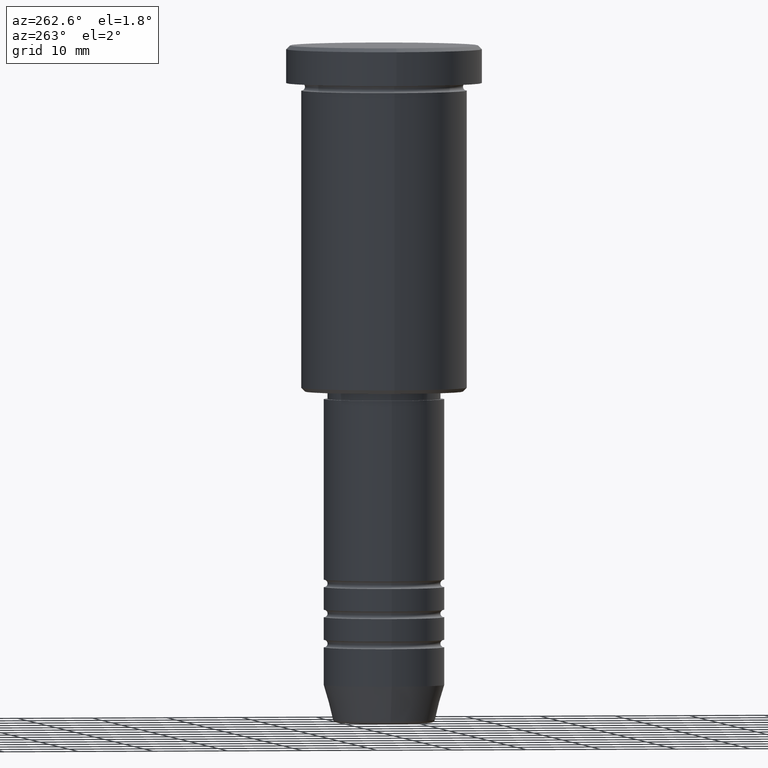
[diagram: clean part render]
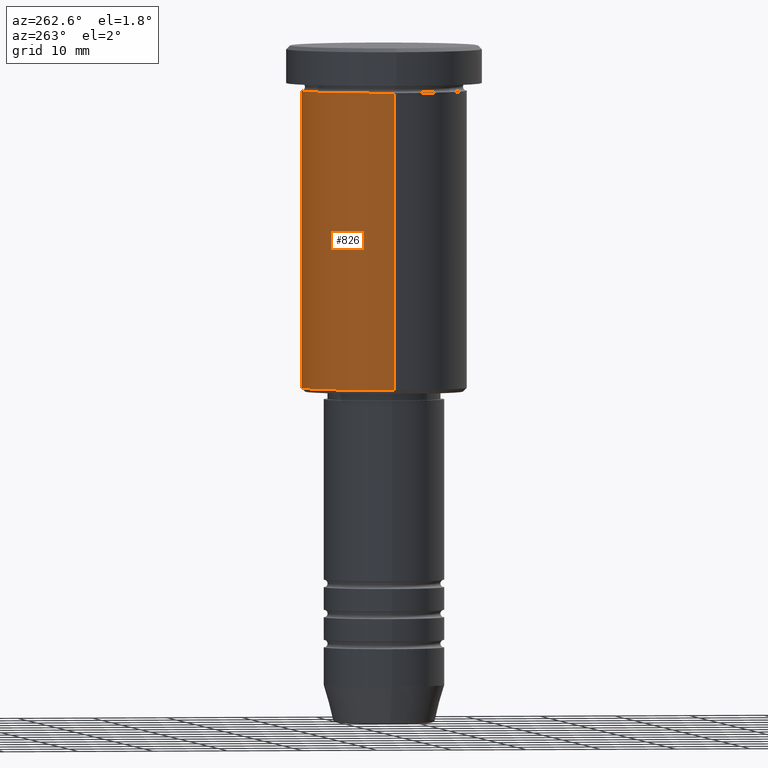
[diagram: same view with one face highlighted and labeled with its STEP entity id]
A machine part, auxiliary view. The second image highlights one B-rep face of the part: STEP entity #826.
In plain terms, the highlighted cylindrical surface (partial cylindrical patch) has radius 11 mm, axis along (-0, -0, 1).
Its self-contained STEP definition (entity closure, byte-faithful):
#27 = EDGE_LOOP ( 'NONE', ( #1053, #132, #223, #1027 ) ) ;
#119 = CARTESIAN_POINT ( 'NONE',  ( 0.000000000000000000, 0.000000000000000000, -45.49999999999998579 ) ) ;
#132 = ORIENTED_EDGE ( 'NONE', *, *, #382, .T. ) ;
#174 = DIRECTION ( 'NONE',  ( -0.000000000000000000, -0.000000000000000000, 1.000000000000000000 ) ) ;
#223 = ORIENTED_EDGE ( 'NONE', *, *, #1121, .F. ) ;
#243 = AXIS2_PLACEMENT_3D ( 'NONE', #1047, #873, #612 ) ;
#271 = CYLINDRICAL_SURFACE ( 'NONE', #605, 11.00000000000000000 ) ;
#272 = CARTESIAN_POINT ( 'NONE',  ( 11.00000000000000000, 0.000000000000000000, -45.49999999999998579 ) ) ;
#274 = CIRCLE ( 'NONE', #967, 11.00000000000000000 ) ;
#317 = CARTESIAN_POINT ( 'NONE',  ( 11.00000000000000000, 0.000000000000000000, -5.999999999999999112 ) ) ;
#343 = CARTESIAN_POINT ( 'NONE',  ( 11.00000000000000000, 0.000000000000000000, 0.000000000000000000 ) ) ;
#354 = VECTOR ( 'NONE', #704, 1000.000000000000000 ) ;
#382 = EDGE_CURVE ( 'NONE', #785, #764, #820, .T. ) ;
#413 = VERTEX_POINT ( 'NONE', #272 ) ;
#436 = CARTESIAN_POINT ( 'NONE',  ( -11.00000000000000000, 1.347111479062088405E-15, -45.49999999999998579 ) ) ;
#444 = DIRECTION ( 'NONE',  ( 1.000000000000000000, 0.000000000000000000, 0.000000000000000000 ) ) ;
#478 = DIRECTION ( 'NONE',  ( -1.000000000000000000, 0.000000000000000000, 0.000000000000000000 ) ) ;
#491 = CIRCLE ( 'NONE', #243, 11.00000000000000000 ) ;
#534 = FACE_OUTER_BOUND ( 'NONE', #27, .T. ) ;
#582 = DIRECTION ( 'NONE',  ( -0.000000000000000000, -0.000000000000000000, 1.000000000000000000 ) ) ;
#605 = AXIS2_PLACEMENT_3D ( 'NONE', #643, #1089, #444 ) ;
#612 = DIRECTION ( 'NONE',  ( 1.000000000000000000, 0.000000000000000000, 0.000000000000000000 ) ) ;
#626 = EDGE_CURVE ( 'NONE', #413, #785, #274, .T. ) ;
#635 = VERTEX_POINT ( 'NONE', #317 ) ;
#643 = CARTESIAN_POINT ( 'NONE',  ( 0.000000000000000000, 0.000000000000000000, 0.000000000000000000 ) ) ;
#704 = DIRECTION ( 'NONE',  ( -0.000000000000000000, -0.000000000000000000, 1.000000000000000000 ) ) ;
#730 = EDGE_CURVE ( 'NONE', #413, #635, #1054, .T. ) ;
#764 = VERTEX_POINT ( 'NONE', #1068 ) ;
#785 = VERTEX_POINT ( 'NONE', #436 ) ;
#820 = LINE ( 'NONE', #997, #1042 ) ;
#826 = ADVANCED_FACE ( 'NONE', ( #534 ), #271, .T. ) ;
#873 = DIRECTION ( 'NONE',  ( -0.000000000000000000, -0.000000000000000000, 1.000000000000000000 ) ) ;
#967 = AXIS2_PLACEMENT_3D ( 'NONE', #119, #582, #478 ) ;
#997 = CARTESIAN_POINT ( 'NONE',  ( -11.00000000000000000, 1.347111479062088405E-15, 0.000000000000000000 ) ) ;
#1027 = ORIENTED_EDGE ( 'NONE', *, *, #730, .F. ) ;
#1042 = VECTOR ( 'NONE', #174, 1000.000000000000000 ) ;
#1047 = CARTESIAN_POINT ( 'NONE',  ( 0.000000000000000000, 0.000000000000000000, -5.999999999999999112 ) ) ;
#1053 = ORIENTED_EDGE ( 'NONE', *, *, #626, .T. ) ;
#1054 = LINE ( 'NONE', #343, #354 ) ;
#1068 = CARTESIAN_POINT ( 'NONE',  ( -11.00000000000000000, 1.347111479062088405E-15, -5.999999999999999112 ) ) ;
#1089 = DIRECTION ( 'NONE',  ( -0.000000000000000000, -0.000000000000000000, 1.000000000000000000 ) ) ;
#1121 = EDGE_CURVE ( 'NONE', #635, #764, #491, .T. ) ;